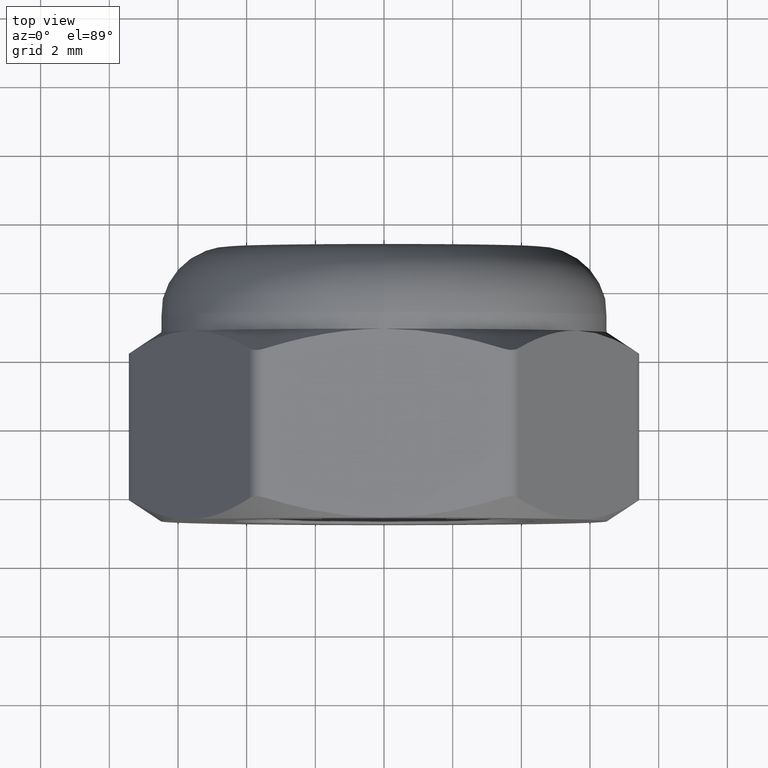
[diagram: clean part render]
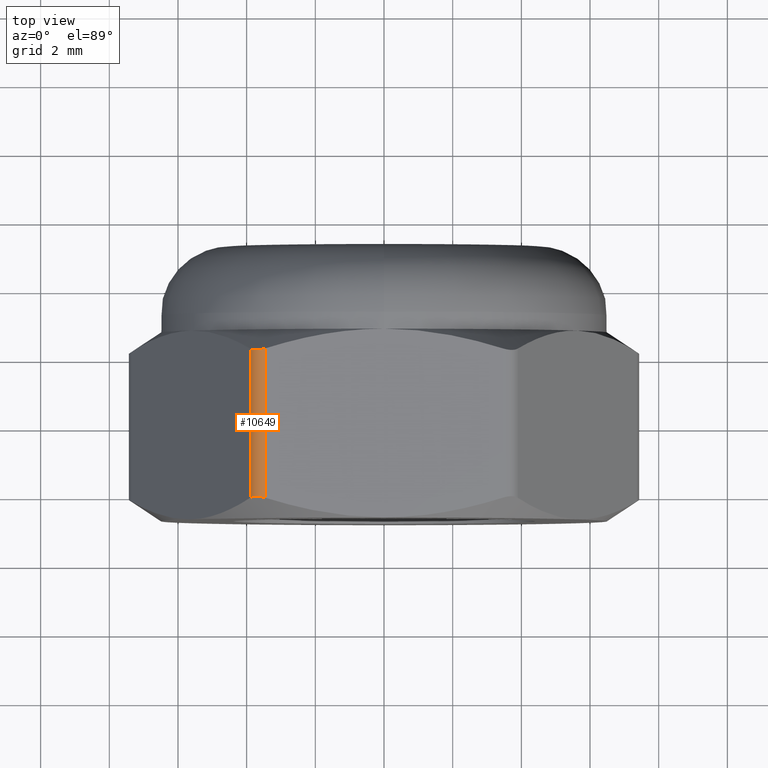
[diagram: same view with one face highlighted and labeled with its STEP entity id]
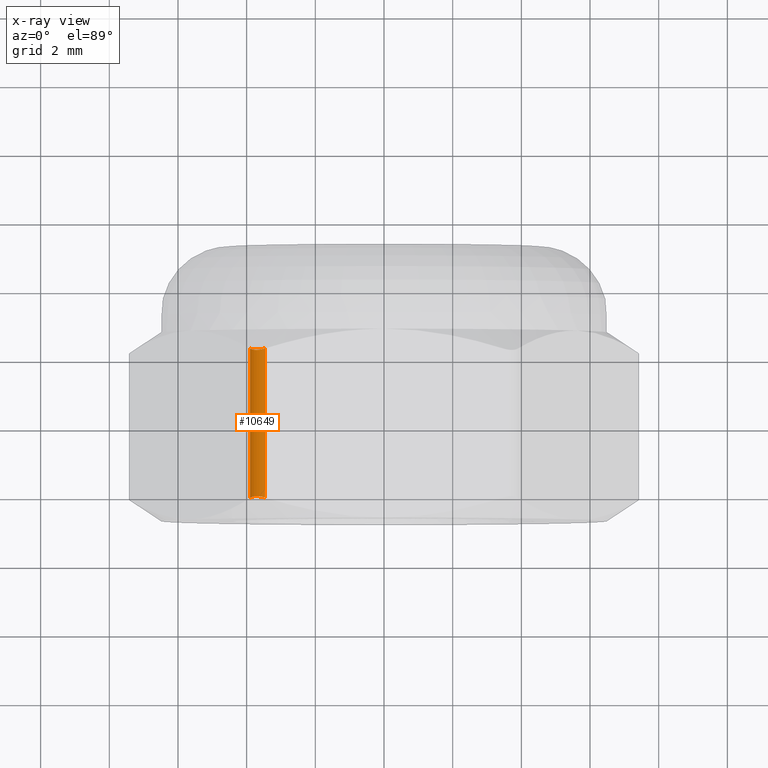
[diagram: x-ray of the same camera — body ghosted, the highlighted face saturated]
A machine part, top view. The second image highlights one B-rep face of the part: STEP entity #10649.
The next image is the same camera in x-ray: the body ghosted, the highlighted face saturated — about 0% of this face is hidden behind the body in this view.
In plain terms, the highlighted cylindrical surface (edge-blend (fillet) strip) has radius 0.5 mm, axis along (0, -1, 0).
Its self-contained STEP definition (entity closure, byte-faithful):
#649 = EDGE_CURVE ( 'NONE', #12238, #8535, #10581, .T. ) ;
#1099 = VERTEX_POINT ( 'NONE', #13925 ) ;
#1564 = DIRECTION ( 'NONE',  ( -0.000000000000000000, 1.000000000000000000, -0.000000000000000000 ) ) ;
#1569 = DIRECTION ( 'NONE',  ( 0.000000000000000000, -1.000000000000000000, 0.000000000000000000 ) ) ;
#2084 = CARTESIAN_POINT ( 'NONE',  ( -3.464101615137754386, 2.750000000000000000, 5.999999999999998224 ) ) ;
#2635 = EDGE_LOOP ( 'NONE', ( #14850, #8704, #10135, #4443 ) ) ;
#2797 = CARTESIAN_POINT ( 'NONE',  ( -3.897114317029974018, 2.750000000000000000, 6.249999999999998224 ) ) ;
#2979 = CARTESIAN_POINT ( 'NONE',  ( -3.464101615137754386, 2.750000000000000000, 6.499999999999999112 ) ) ;
#3334 = CARTESIAN_POINT ( 'NONE',  ( -3.854442301723183917, -2.146267542208510459, 6.323910098572732785 ) ) ;
#3669 = VECTOR ( 'NONE', #1564, 1000.000000000000000 ) ;
#4443 = ORIENTED_EDGE ( 'NONE', *, *, #649, .F. ) ;
#4475 = AXIS2_PLACEMENT_3D ( 'NONE', #2084, #7496, #13888 ) ;
#5859 = CYLINDRICAL_SURFACE ( 'NONE', #4475, 0.5000000000000004441 ) ;
#6716 = B_SPLINE_CURVE_WITH_KNOTS ( 'NONE', 3,
 ( #12333, #9926, #15065, #9692, #3334, #13553 ),
 .UNSPECIFIED., .F., .F.,
 ( 4, 2, 4 ),
 ( 1.494781510027792091E-15, 0.0002647338970859347399, 0.0005294677941703746903 ),
 .UNSPECIFIED. ) ;
#6718 = CARTESIAN_POINT ( 'NONE',  ( -3.464101615139304702, 2.173026712447436282, 6.499999999999999112 ) ) ;
#6758 = EDGE_CURVE ( 'NONE', #8535, #1099, #6716, .T. ) ;
#7273 = CARTESIAN_POINT ( 'NONE',  ( -3.854461585226516718, 2.146279634693613048, 6.323876698565194410 ) ) ;
#7496 = DIRECTION ( 'NONE',  ( 0.000000000000000000, -1.000000000000000000, 0.000000000000000000 ) ) ;
#8535 = VERTEX_POINT ( 'NONE', #13559 ) ;
#8612 = B_SPLINE_CURVE_WITH_KNOTS ( 'NONE', 3,
 ( #13656, #7273, #11589, #10225, #10131, #15226 ),
 .UNSPECIFIED., .F., .F.,
 ( 4, 2, 4 ),
 ( 8.290604385452445905E-15, 0.0002647338970885992752, 0.0005294677941689078732 ),
 .UNSPECIFIED. ) ;
#8704 = ORIENTED_EDGE ( 'NONE', *, *, #15613, .F. ) ;
#9692 = CARTESIAN_POINT ( 'NONE',  ( -3.790381598833931331, -2.131145876880369716, 6.389068942961253050 ) ) ;
#9926 = CARTESIAN_POINT ( 'NONE',  ( -3.549407078746197541, -2.146279634688885718, 6.499999999999998224 ) ) ;
#10131 = CARTESIAN_POINT ( 'NONE',  ( -3.549445645750310074, 2.146267542208845303, 6.499999999999990230 ) ) ;
#10135 = ORIENTED_EDGE ( 'NONE', *, *, #6758, .F. ) ;
#10225 = CARTESIAN_POINT ( 'NONE',  ( -3.637905211716814691, 2.131145876880583323, 6.477101226107984999 ) ) ;
#10581 = LINE ( 'NONE', #2979, #13586 ) ;
#10649 = ADVANCED_FACE ( 'NONE', ( #13864 ), #5859, .T. ) ;
#10919 = VERTEX_POINT ( 'NONE', #14947 ) ;
#11589 = CARTESIAN_POINT ( 'NONE',  ( -3.791117817374221932, 2.131250094829999497, 6.388450348966760117 ) ) ;
#12238 = VERTEX_POINT ( 'NONE', #6718 ) ;
#12333 = CARTESIAN_POINT ( 'NONE',  ( -3.464101615139304702, -2.173026712447436282, 6.499999999999999112 ) ) ;
#13553 = CARTESIAN_POINT ( 'NONE',  ( -3.897114317029973574, -2.173026712447922115, 6.249999999999999112 ) ) ;
#13559 = CARTESIAN_POINT ( 'NONE',  ( -3.464101615139304702, -2.173026712447436282, 6.499999999999999112 ) ) ;
#13586 = VECTOR ( 'NONE', #1569, 1000.000000000000000 ) ;
#13656 = CARTESIAN_POINT ( 'NONE',  ( -3.897114317026375119, 2.173026712445665254, 6.250000000006232348 ) ) ;
#13864 = FACE_OUTER_BOUND ( 'NONE', #2635, .T. ) ;
#13865 = LINE ( 'NONE', #2797, #3669 ) ;
#13888 = DIRECTION ( 'NONE',  ( 0.000000000000000000, 0.000000000000000000, -1.000000000000000000 ) ) ;
#13925 = CARTESIAN_POINT ( 'NONE',  ( -3.897114317029973574, -2.173026712447922115, 6.249999999999999112 ) ) ;
#14850 = ORIENTED_EDGE ( 'NONE', *, *, #15835, .F. ) ;
#14947 = CARTESIAN_POINT ( 'NONE',  ( -3.897114317026375119, 2.173026712445665254, 6.250000000006232348 ) ) ;
#15065 = CARTESIAN_POINT ( 'NONE',  ( -3.637001384330796672, -2.131250094830215325, 6.477429513070524614 ) ) ;
#15226 = CARTESIAN_POINT ( 'NONE',  ( -3.464101615139304702, 2.173026712447436282, 6.499999999999999112 ) ) ;
#15613 = EDGE_CURVE ( 'NONE', #1099, #10919, #13865, .T. ) ;
#15835 = EDGE_CURVE ( 'NONE', #10919, #12238, #8612, .T. ) ;